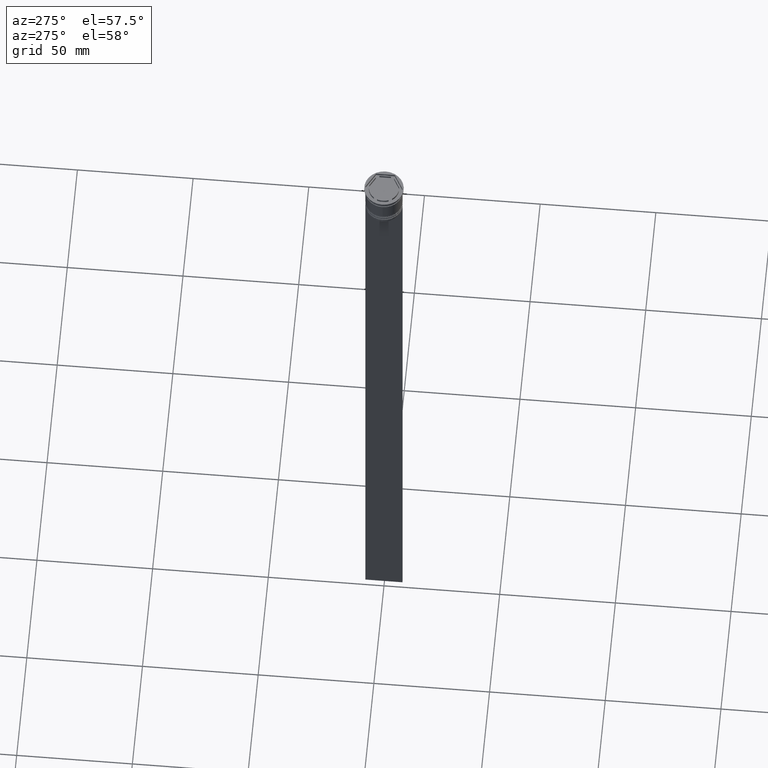
[diagram: clean part render]
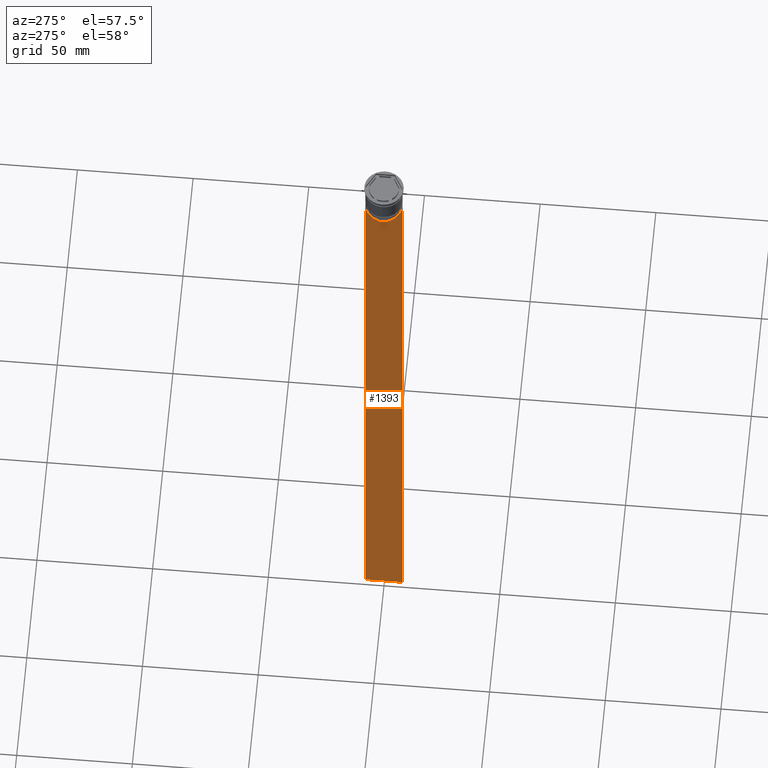
[diagram: same view with one face highlighted and labeled with its STEP entity id]
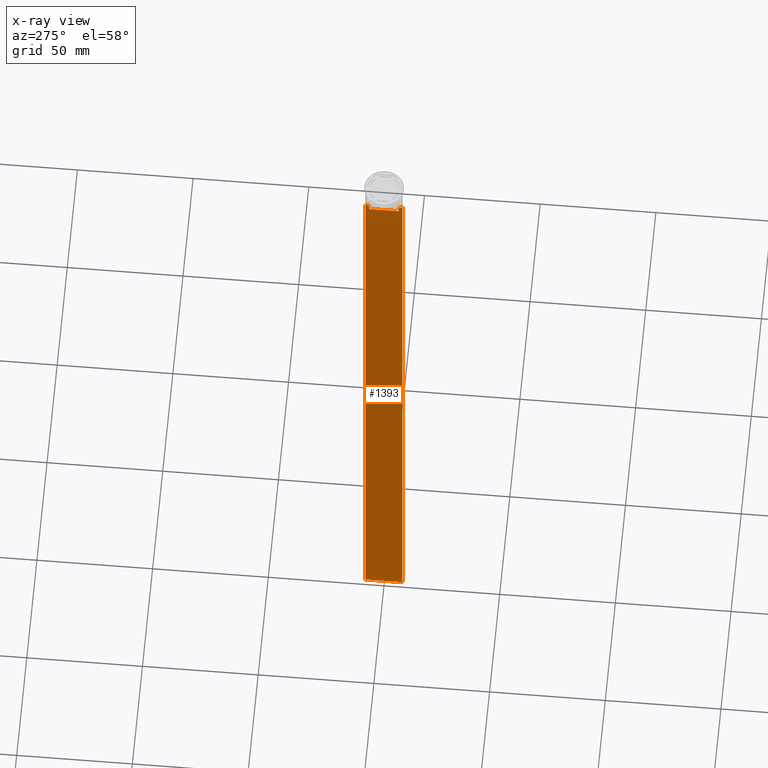
[diagram: x-ray of the same camera — body ghosted, the highlighted face saturated]
A machine part, auxiliary view. The second image highlights one B-rep face of the part: STEP entity #1393.
The next image is the same camera in x-ray: the body ghosted, the highlighted face saturated — about 0% of this face is hidden behind the body in this view.
In plain terms, the highlighted planar face has unit normal (-1, 0, 0).
Its self-contained STEP definition (entity closure, byte-faithful):
#17 = CARTESIAN_POINT ( 'NONE',  ( -0.4999999999999998890, 6.380438856379708312, -14.50000000000000000 ) ) ;
#37 = CARTESIAN_POINT ( 'NONE',  ( -0.4999999999999998890, -6.380438856379708312, -14.50000000000000000 ) ) ;
#64 = AXIS2_PLACEMENT_3D ( 'NONE', #1404, #612, #1391 ) ;
#68 = LINE ( 'NONE', #1038, #1316 ) ;
#91 = CARTESIAN_POINT ( 'NONE',  ( -0.4999999999999998890, -8.000000000000003553, 2.031219541881394530 ) ) ;
#94 = ORIENTED_EDGE ( 'NONE', *, *, #2069, .F. ) ;
#138 = CARTESIAN_POINT ( 'NONE',  ( -0.4999999999999998890, 6.881860213634098500, -14.00000000000000178 ) ) ;
#161 = VERTEX_POINT ( 'NONE', #17 ) ;
#163 = B_SPLINE_CURVE_WITH_KNOTS ( 'NONE', 3,
 ( #37, #2147, #1582, #1793 ),
 .UNSPECIFIED., .F., .F.,
 ( 4, 4 ),
 ( 0.02996184199614749730, 0.03067452609193703841 ),
 .UNSPECIFIED. ) ;
#166 = LINE ( 'NONE', #559, #1321 ) ;
#182 = ORIENTED_EDGE ( 'NONE', *, *, #2087, .F. ) ;
#192 = VECTOR ( 'NONE', #1061, 1000.000000000000000 ) ;
#214 = ORIENTED_EDGE ( 'NONE', *, *, #346, .F. ) ;
#231 = CARTESIAN_POINT ( 'NONE',  ( -0.4999999999999998890, -7.884161337770806632, -14.00000000000000178 ) ) ;
#284 = VERTEX_POINT ( 'NONE', #1844 ) ;
#300 = DIRECTION ( 'NONE',  ( 0.000000000000000000, -1.000000000000000000, 0.000000000000000000 ) ) ;
#317 = CARTESIAN_POINT ( 'NONE',  ( -0.4999999999999998890, 6.380438856379708312, 0.000000000000000000 ) ) ;
#346 = EDGE_CURVE ( 'NONE', #1150, #1546, #1448, .T. ) ;
#404 = VERTEX_POINT ( 'NONE', #1701 ) ;
#484 = CARTESIAN_POINT ( 'NONE',  ( -0.4999999999999998890, -6.380438856379708312, -14.50000000000000000 ) ) ;
#511 = CARTESIAN_POINT ( 'NONE',  ( -0.4999999999999998890, 6.380438856379708312, -14.50000000000000000 ) ) ;
#559 = CARTESIAN_POINT ( 'NONE',  ( -0.4999999999999998890, -8.000000000000003553, -314.0000000000000000 ) ) ;
#612 = DIRECTION ( 'NONE',  ( -1.000000000000000000, 0.000000000000000000, 0.000000000000000000 ) ) ;
#619 = VECTOR ( 'NONE', #829, 1000.000000000000000 ) ;
#643 = FACE_OUTER_BOUND ( 'NONE', #769, .T. ) ;
#656 = ORIENTED_EDGE ( 'NONE', *, *, #1239, .F. ) ;
#665 = VECTOR ( 'NONE', #687, 1000.000000000000000 ) ;
#669 = DIRECTION ( 'NONE',  ( 0.000000000000000000, 0.000000000000000000, -1.000000000000000000 ) ) ;
#677 = LINE ( 'NONE', #881, #665 ) ;
#687 = DIRECTION ( 'NONE',  ( 0.000000000000000000, -1.000000000000000000, 0.000000000000000000 ) ) ;
#703 = VECTOR ( 'NONE', #2092, 1000.000000000000000 ) ;
#725 = VERTEX_POINT ( 'NONE', #1818 ) ;
#733 = ORIENTED_EDGE ( 'NONE', *, *, #2080, .F. ) ;
#747 = EDGE_CURVE ( 'NONE', #725, #1150, #68, .T. ) ;
#759 = ORIENTED_EDGE ( 'NONE', *, *, #2096, .F. ) ;
#769 = EDGE_LOOP ( 'NONE', ( #759, #214, #791, #1166, #182, #94, #1162, #733, #840, #1529, #656, #1467 ) ) ;
#791 = ORIENTED_EDGE ( 'NONE', *, *, #747, .F. ) ;
#829 = DIRECTION ( 'NONE',  ( 0.000000000000000000, 0.000000000000000000, -1.000000000000000000 ) ) ;
#840 = ORIENTED_EDGE ( 'NONE', *, *, #1464, .F. ) ;
#849 = CARTESIAN_POINT ( 'NONE',  ( -0.4999999999999998890, 6.881860213634098500, -14.00000000000000178 ) ) ;
#881 = CARTESIAN_POINT ( 'NONE',  ( -0.4999999999999998890, -8.000000000000003553, -14.00000000000000178 ) ) ;
#904 = VECTOR ( 'NONE', #300, 1000.000000000000000 ) ;
#932 = B_SPLINE_CURVE_WITH_KNOTS ( 'NONE', 3,
 ( #138, #1532, #2101, #511 ),
 .UNSPECIFIED., .F., .F.,
 ( 4, 4 ),
 ( 0.01172465562756038263, 0.01243276816391822651 ),
 .UNSPECIFIED. ) ;
#977 = PLANE ( 'NONE',  #64 ) ;
#995 = VECTOR ( 'NONE', #2446, 1000.000000000000000 ) ;
#1038 = CARTESIAN_POINT ( 'NONE',  ( -0.4999999999999998890, -8.000000000000003553, -14.00000000000000178 ) ) ;
#1061 = DIRECTION ( 'NONE',  ( -0.000000000000000000, -0.000000000000000000, 1.000000000000000000 ) ) ;
#1150 = VERTEX_POINT ( 'NONE', #1410 ) ;
#1162 = ORIENTED_EDGE ( 'NONE', *, *, #1981, .F. ) ;
#1166 = ORIENTED_EDGE ( 'NONE', *, *, #1192, .T. ) ;
#1192 = EDGE_CURVE ( 'NONE', #725, #2195, #1787, .T. ) ;
#1239 = EDGE_CURVE ( 'NONE', #2158, #1905, #1267, .T. ) ;
#1257 = CARTESIAN_POINT ( 'NONE',  ( -0.4999999999999998890, 7.999999999999996447, 2.031219541881394530 ) ) ;
#1267 = LINE ( 'NONE', #2033, #904 ) ;
#1296 = LINE ( 'NONE', #2484, #995 ) ;
#1316 = VECTOR ( 'NONE', #1991, 1000.000000000000000 ) ;
#1321 = VECTOR ( 'NONE', #1485, 1000.000000000000000 ) ;
#1391 = DIRECTION ( 'NONE',  ( 0.000000000000000000, 0.000000000000000000, 1.000000000000000000 ) ) ;
#1393 = ADVANCED_FACE ( 'NONE', ( #643 ), #977, .T. ) ;
#1404 = CARTESIAN_POINT ( 'NONE',  ( -0.4999999999999998890, -8.000000000000003553, 2.031219541881394530 ) ) ;
#1410 = CARTESIAN_POINT ( 'NONE',  ( -0.4999999999999998890, 7.884161337770806632, -14.00000000000000178 ) ) ;
#1413 = CARTESIAN_POINT ( 'NONE',  ( -0.4999999999999998890, -6.380438856379708312, -17.00000000000000000 ) ) ;
#1423 = LINE ( 'NONE', #91, #703 ) ;
#1448 = LINE ( 'NONE', #1807, #1718 ) ;
#1464 = EDGE_CURVE ( 'NONE', #2468, #2452, #163, .T. ) ;
#1467 = ORIENTED_EDGE ( 'NONE', *, *, #1617, .F. ) ;
#1485 = DIRECTION ( 'NONE',  ( 0.000000000000000000, 1.000000000000000000, 0.000000000000000000 ) ) ;
#1529 = ORIENTED_EDGE ( 'NONE', *, *, #1911, .F. ) ;
#1532 = CARTESIAN_POINT ( 'NONE',  ( -0.4999999999999998890, 6.714736947114692711, -14.16668390704818847 ) ) ;
#1546 = VERTEX_POINT ( 'NONE', #849 ) ;
#1582 = CARTESIAN_POINT ( 'NONE',  ( -0.4999999999999998890, -6.714736947305992132, -14.16668390685738999 ) ) ;
#1617 = EDGE_CURVE ( 'NONE', #161, #2158, #2386, .T. ) ;
#1633 = CARTESIAN_POINT ( 'NONE',  ( -0.4999999999999998890, -6.881860213634098500, -14.00000000000000178 ) ) ;
#1661 = LINE ( 'NONE', #2396, #192 ) ;
#1688 = CARTESIAN_POINT ( 'NONE',  ( -0.4999999999999998890, 6.380438856379708312, -17.00000000000000000 ) ) ;
#1701 = CARTESIAN_POINT ( 'NONE',  ( -0.4999999999999998890, -8.000000000000003553, -14.00000000000000178 ) ) ;
#1718 = VECTOR ( 'NONE', #2421, 1000.000000000000000 ) ;
#1769 = VECTOR ( 'NONE', #669, 1000.000000000000000 ) ;
#1787 = LINE ( 'NONE', #1257, #619 ) ;
#1793 = CARTESIAN_POINT ( 'NONE',  ( -0.4999999999999998890, -6.881860213634098500, -14.00000000000000178 ) ) ;
#1807 = CARTESIAN_POINT ( 'NONE',  ( -0.4999999999999998890, -8.000000000000003553, -14.00000000000000178 ) ) ;
#1818 = CARTESIAN_POINT ( 'NONE',  ( -0.4999999999999998890, 7.999999999999996447, -14.00000000000000178 ) ) ;
#1844 = CARTESIAN_POINT ( 'NONE',  ( -0.4999999999999998890, -8.000000000000003553, -314.0000000000000000 ) ) ;
#1905 = VERTEX_POINT ( 'NONE', #1413 ) ;
#1911 = EDGE_CURVE ( 'NONE', #1905, #2468, #1661, .T. ) ;
#1981 = EDGE_CURVE ( 'NONE', #2269, #404, #677, .T. ) ;
#1991 = DIRECTION ( 'NONE',  ( 0.000000000000000000, -1.000000000000000000, 0.000000000000000000 ) ) ;
#2033 = CARTESIAN_POINT ( 'NONE',  ( -0.4999999999999998890, 6.399999999999999467, -17.00000000000000000 ) ) ;
#2069 = EDGE_CURVE ( 'NONE', #404, #284, #1423, .T. ) ;
#2080 = EDGE_CURVE ( 'NONE', #2452, #2269, #1296, .T. ) ;
#2087 = EDGE_CURVE ( 'NONE', #284, #2195, #166, .T. ) ;
#2092 = DIRECTION ( 'NONE',  ( 0.000000000000000000, 0.000000000000000000, -1.000000000000000000 ) ) ;
#2096 = EDGE_CURVE ( 'NONE', #1546, #161, #932, .T. ) ;
#2101 = CARTESIAN_POINT ( 'NONE',  ( -0.4999999999999998890, 6.547597841304911626, -14.33335192459222718 ) ) ;
#2147 = CARTESIAN_POINT ( 'NONE',  ( -0.4999999999999998890, -6.547597841511246131, -14.33335192438652328 ) ) ;
#2158 = VERTEX_POINT ( 'NONE', #1688 ) ;
#2195 = VERTEX_POINT ( 'NONE', #2298 ) ;
#2269 = VERTEX_POINT ( 'NONE', #231 ) ;
#2298 = CARTESIAN_POINT ( 'NONE',  ( -0.4999999999999998890, 7.999999999999996447, -314.0000000000000000 ) ) ;
#2386 = LINE ( 'NONE', #317, #1769 ) ;
#2396 = CARTESIAN_POINT ( 'NONE',  ( -0.4999999999999998890, -6.380438856379708312, 0.000000000000000000 ) ) ;
#2421 = DIRECTION ( 'NONE',  ( 0.000000000000000000, -1.000000000000000000, 0.000000000000000000 ) ) ;
#2446 = DIRECTION ( 'NONE',  ( 0.000000000000000000, -1.000000000000000000, 0.000000000000000000 ) ) ;
#2452 = VERTEX_POINT ( 'NONE', #1633 ) ;
#2468 = VERTEX_POINT ( 'NONE', #484 ) ;
#2484 = CARTESIAN_POINT ( 'NONE',  ( -0.4999999999999998890, -8.000000000000003553, -14.00000000000000178 ) ) ;